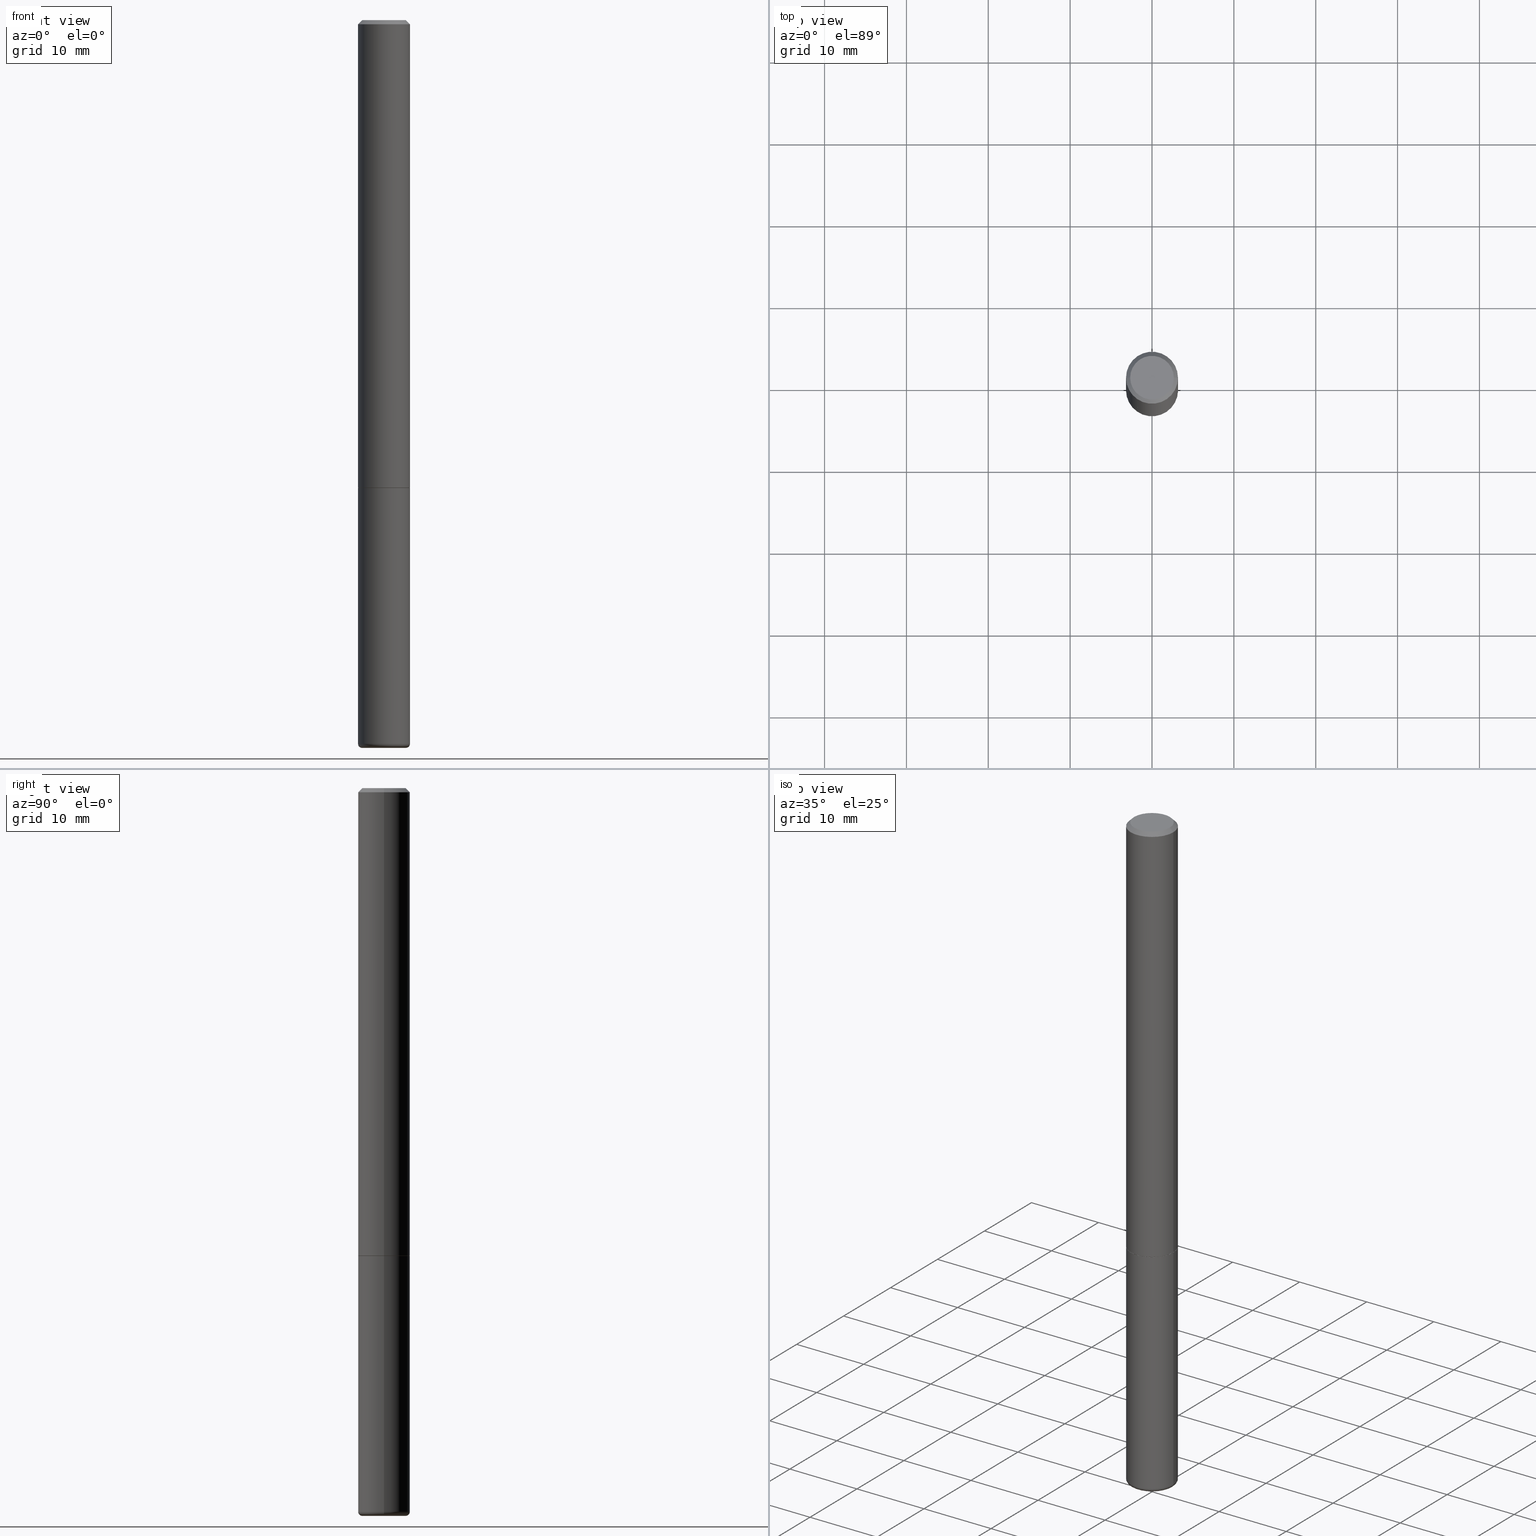
[diagram: canonical four-view strip — front | top / right | iso, engineering-drawing reading convention]
A machine part, canonical four-view strip (front | top / right | iso — engineering-drawing reading convention). The complete STEP part file that produces these views, byte-faithful:
ISO-10303-21;
HEADER;
FILE_DESCRIPTION (( 'STEP AP203' ),
    '1' );
FILE_NAME ('33394.STEP',
    '2022-11-02T20:10:54',
    ( '' ),
    ( '' ),
    'SwSTEP 2.0',
    'SolidWorks 2022',
    '' );
FILE_SCHEMA (( 'CONFIG_CONTROL_DESIGN' ));
ENDSEC;

DATA;
#1 = DATE_AND_TIME ( #155, #62 ) ;
#2 = EDGE_CURVE ( 'NONE', #392, #10, #116, .T. ) ;
#3 = APPROVAL_ROLE ( '' ) ;
#4 = APPROVAL_STATUS ( 'not_yet_approved' ) ;
#5 = CIRCLE ( 'NONE', #133, 0.1249999999999993200 ) ;
#6 = CARTESIAN_POINT ( 'NONE',  ( 0.1250000000000000000, -8.725211865769015625E-15, -2.248999999999999222 ) ) ;
#7 = EDGE_CURVE ( 'NONE', #58, #10, #346, .T. ) ;
#8 = FACE_OUTER_BOUND ( 'NONE', #364, .T. ) ;
#9 = DIRECTION ( 'NONE',  ( 2.438088387897960049E-29, -3.491481338843145188E-15, -1.000000000000000000 ) ) ;
#10 = VERTEX_POINT ( 'NONE', #35 ) ;
#11 = DIRECTION ( 'NONE',  ( -1.000000000000000000, 6.982962677686265922E-15, -4.876176775795935793E-29 ) ) ;
#12 = CIRCLE ( 'NONE', #69, 0.1239999999999999991 ) ;
#13 = ORIENTED_EDGE ( 'NONE', *, *, #236, .F. ) ;
#14 = LINE ( 'NONE', #315, #21 ) ;
#15 = ORIENTED_EDGE ( 'NONE', *, *, #115, .T. ) ;
#16 = COORDINATED_UNIVERSAL_TIME_OFFSET ( 5, 0, .BEHIND. ) ;
#17 = CARTESIAN_POINT ( 'NONE',  ( -0.1250000000000000000, 8.881784197001252323E-16, -6.148668862818632227E-30 ) ) ;
#18 = EDGE_LOOP ( 'NONE', ( #470, #96 ) ) ;
#19 = DIRECTION ( 'NONE',  ( 2.445468806185136597E-29, -3.491481338843145583E-15, -1.000000000000000000 ) ) ;
#20 = APPLICATION_CONTEXT ( 'configuration controlled 3d designs of mechanical parts and assemblies' ) ;
#21 = VECTOR ( 'NONE', #170, 39.37007874015748143 ) ;
#22 = ORIENTED_EDGE ( 'NONE', *, *, #288, .T. ) ;
#23 = ADVANCED_FACE ( 'NONE', ( #47 ), #388, .F. ) ;
#24 = LINE ( 'NONE', #324, #118 ) ;
#25 = VERTEX_POINT ( 'NONE', #6 ) ;
#26 = DIRECTION ( 'NONE',  ( -2.445468806185136597E-29, 3.491481338843145583E-15, 1.000000000000000000 ) ) ;
#27 = ORIENTED_EDGE ( 'NONE', *, *, #468, .F. ) ;
#28 = CARTESIAN_POINT ( 'NONE',  ( -0.1239999999999999991, -6.969461565706329456E-15, -2.249999999999999556 ) ) ;
#29 = ADVANCED_FACE ( 'NONE', ( #187 ), #347, .T. ) ;
#30 = EDGE_LOOP ( 'NONE', ( #247, #283, #216, #256 ) ) ;
#31 = AXIS2_PLACEMENT_3D ( 'NONE', #258, #411, #488 ) ;
#32 = CARTESIAN_POINT ( 'NONE',  ( 0.1239999999999999991, -8.721720384430172617E-15, -2.249999999999999556 ) ) ;
#33 = CARTESIAN_POINT ( 'NONE',  ( 5.499859345110370619E-29, -7.852341531058232286E-15, -2.248999999999999222 ) ) ;
#34 = COORDINATED_UNIVERSAL_TIME_OFFSET ( 5, 0, .BEHIND. ) ;
#35 = CARTESIAN_POINT ( 'NONE',  ( -0.1048254692900327661, -1.136876711352824121E-14, -3.500000000000000000 ) ) ;
#36 = DATE_AND_TIME ( #148, #305 ) ;
#37 = CIRCLE ( 'NONE', #263, 0.1250000000000000000 ) ;
#38 = EDGE_CURVE ( 'NONE', #179, #476, #214, .T. ) ;
#39 = APPROVAL_STATUS ( 'not_yet_approved' ) ;
#40 = CIRCLE ( 'NONE', #225, 0.1250000000000000000 ) ;
#41 = ORIENTED_EDGE ( 'NONE', *, *, #162, .T. ) ;
#42 = PERSON_AND_ORGANIZATION ( #234, #321 ) ;
#43 = DIRECTION ( 'NONE',  ( -2.445468806185136597E-29, 3.491481338843145583E-15, 1.000000000000000000 ) ) ;
#44 = MANIFOLD_SOLID_BREP ( 'Body-Move/Copy2[1]', #75 ) ;
#45 = CC_DESIGN_PERSON_AND_ORGANIZATION_ASSIGNMENT ( #78, #232, ( #272 ) ) ;
#46 = VERTEX_POINT ( 'NONE', #182 ) ;
#47 = FACE_OUTER_BOUND ( 'NONE', #466, .T. ) ;
#48 =( GEOMETRIC_REPRESENTATION_CONTEXT ( 3 ) GLOBAL_UNCERTAINTY_ASSIGNED_CONTEXT ( ( #129 ) ) GLOBAL_UNIT_ASSIGNED_CONTEXT ( ( #273, #422, #456 ) ) REPRESENTATION_CONTEXT ( 'NONE', 'WORKASPACE' ) );
#49 = DIRECTION ( 'NONE',  ( 0.7071067811865232589, -2.468850131082003836E-15, 0.7071067811865715536 ) ) ;
#50 = DIRECTION ( 'NONE',  ( -2.445468806185136597E-29, 3.491481338843145583E-15, 1.000000000000000000 ) ) ;
#51 = DIRECTION ( 'NONE',  ( 1.000000000000000000, -6.982962677686270655E-15, 0.000000000000000000 ) ) ;
#52 = VECTOR ( 'NONE', #262, 39.37007874015748143 ) ;
#53 = EDGE_LOOP ( 'NONE', ( #441, #55, #200, #481 ) ) ;
#54 = DIRECTION ( 'NONE',  ( 1.000000000000000000, -6.982962677686265922E-15, 0.000000000000000000 ) ) ;
#55 = ORIENTED_EDGE ( 'NONE', *, *, #281, .T. ) ;
#56 = CARTESIAN_POINT ( 'NONE',  ( -0.1250000000000000000, -3.072907159217412699E-15, -2.248999999999999222 ) ) ;
#57 = EDGE_CURVE ( 'NONE', #10, #46, #80, .T. ) ;
#58 = VERTEX_POINT ( 'NONE', #266 ) ;
#59 = DIRECTION ( 'NONE',  ( 1.000000000000000000, -6.982962677686265922E-15, 0.000000000000000000 ) ) ;
#60 = AXIS2_PLACEMENT_3D ( 'NONE', #33, #184, #372 ) ;
#61 = ORIENTED_EDGE ( 'NONE', *, *, #383, .T. ) ;
#62 = LOCAL_TIME ( 16, 10, 54.00000000000000000, #186 ) ;
#63 = DIRECTION ( 'NONE',  ( -2.445468806185136597E-29, 3.491481338843145583E-15, 1.000000000000000000 ) ) ;
#64 = VERTEX_POINT ( 'NONE', #417 ) ;
#65 = CARTESIAN_POINT ( 'NONE',  ( 0.1050000000000001488, -1.288356879922942237E-14, -3.480000761538716514 ) ) ;
#66 = ORIENTED_EDGE ( 'NONE', *, *, #482, .T. ) ;
#67 = LINE ( 'NONE', #413, #204 ) ;
#68 = DIRECTION ( 'NONE',  ( 1.000000000000000000, -6.982962677686270655E-15, 0.000000000000000000 ) ) ;
#69 = AXIS2_PLACEMENT_3D ( 'NONE', #122, #239, #199 ) ;
#70 = AXIS2_PLACEMENT_3D ( 'NONE', #213, #63, #322 ) ;
#71 = DIRECTION ( 'NONE',  ( -1.000000000000000000, 6.982962677686265922E-15, 0.000000000000000000 ) ) ;
#72 = ORIENTED_EDGE ( 'NONE', *, *, #361, .T. ) ;
#73 = CARTESIAN_POINT ( 'NONE',  ( 0.000000000000000000, 0.000000000000000000, 0.000000000000000000 ) ) ;
#74 = CC_DESIGN_PERSON_AND_ORGANIZATION_ASSIGNMENT ( #271, #303, ( #109 ) ) ;
#75 = CLOSED_SHELL ( 'NONE', ( #426, #76, #327, #274, #23, #147, #185, #29, #223 ) ) ;
#76 = ADVANCED_FACE ( 'NONE', ( #333 ), #278, .T. ) ;
#77 = CARTESIAN_POINT ( 'NONE',  ( 0.09149296929003276901, -1.284746578135302470E-14, -3.499883649035179456 ) ) ;
#78 = PERSON_AND_ORGANIZATION ( #234, #321 ) ;
#79 = DIRECTION ( 'NONE',  ( 1.000000000000000000, -6.982962677686265922E-15, 4.876176775795935793E-29 ) ) ;
#80 = CIRCLE ( 'NONE', #397, 0.01999999999999985470 ) ;
#81 = CIRCLE ( 'NONE', #189, 0.01999999999999985470 ) ;
#82 = DIRECTION ( 'NONE',  ( 1.000000000000000000, -6.982962677686270655E-15, 0.000000000000000000 ) ) ;
#83 = DESIGN_CONTEXT ( 'detailed design', #380, 'design' ) ;
#84 = DIRECTION ( 'NONE',  ( -1.000000000000000000, 6.982962677686270655E-15, 0.000000000000000000 ) ) ;
#85 = ORIENTED_EDGE ( 'NONE', *, *, #400, .T. ) ;
#86 = CC_DESIGN_PERSON_AND_ORGANIZATION_ASSIGNMENT ( #458, #379, ( #448 ) ) ;
#87 = DIRECTION ( 'NONE',  ( 2.445468806185136597E-29, -3.491481338843145583E-15, -1.000000000000000000 ) ) ;
#88 = ORIENTED_EDGE ( 'NONE', *, *, #7, .F. ) ;
#89 = DIRECTION ( 'NONE',  ( 1.000000000000000000, -6.982962677686262766E-15, 0.000000000000000000 ) ) ;
#90 = LOCAL_TIME ( 16, 10, 54.00000000000000000, #418 ) ;
#91 = EDGE_LOOP ( 'NONE', ( #436, #337, #102, #277 ) ) ;
#92 = CARTESIAN_POINT ( 'NONE',  ( 8.559140821647976968E-29, -1.222018468595100934E-14, -3.500000000000000000 ) ) ;
#93 = APPROVAL ( #117, 'UNSPECIFIED' ) ;
#94 = EDGE_LOOP ( 'NONE', ( #345, #72, #219, #329 ) ) ;
#95 = DIRECTION ( 'NONE',  ( -2.445468806185136877E-29, 3.491481338843145188E-15, 1.000000000000000000 ) ) ;
#96 = ORIENTED_EDGE ( 'NONE', *, *, #236, .T. ) ;
#97 = DIRECTION ( 'NONE',  ( -2.445468806185136597E-29, 3.491481338843145583E-15, 1.000000000000000000 ) ) ;
#98 = AXIS2_PLACEMENT_3D ( 'NONE', #310, #127, #469 ) ;
#99 = ORIENTED_EDGE ( 'NONE', *, *, #461, .T. ) ;
#100 = APPROVAL_PERSON_ORGANIZATION ( #229, #393, #314 ) ;
#101 = DIRECTION ( 'NONE',  ( -2.445468806185136597E-29, 3.491481338843145583E-15, 1.000000000000000000 ) ) ;
#102 = ORIENTED_EDGE ( 'NONE', *, *, #440, .F. ) ;
#103 = DIRECTION ( 'NONE',  ( 2.445468806185136597E-29, -3.491481338843145583E-15, -1.000000000000000000 ) ) ;
#104 = DIRECTION ( 'NONE',  ( -2.445468806185136597E-29, 3.491481338843145583E-15, 1.000000000000000000 ) ) ;
#105 = FACE_OUTER_BOUND ( 'NONE', #291, .T. ) ;
#106 = DIRECTION ( 'NONE',  ( 2.445468806185136597E-29, -3.491481338843145583E-15, -1.000000000000000000 ) ) ;
#107 = AXIS2_PLACEMENT_3D ( 'NONE', #276, #395, #51 ) ;
#108 = CONICAL_SURFACE ( 'NONE', #98, 0.09149296929003276901, 1.535889741755006810 ) ;
#109 = SECURITY_CLASSIFICATION ( '', '', #267 ) ;
#110 = APPLICATION_PROTOCOL_DEFINITION ( 'international standard', 'config_control_design', 1994, #20 ) ;
#111 = EDGE_CURVE ( 'NONE', #25, #191, #235, .T. ) ;
#112 = CARTESIAN_POINT ( 'NONE',  ( -0.1050000000000001488, -1.140428784552425740E-14, -3.480000761538716514 ) ) ;
#113 =( LENGTH_UNIT ( ) NAMED_UNIT ( * ) SI_UNIT ( $, .METRE. ) );
#114 = APPROVAL_ROLE ( '' ) ;
#115 = EDGE_CURVE ( 'NONE', #210, #25, #457, .T. ) ;
#116 = CIRCLE ( 'NONE', #356, 0.1048254692900327661 ) ;
#117 = APPROVAL_STATUS ( 'not_yet_approved' ) ;
#118 = VECTOR ( 'NONE', #180, 39.37007874015748143 ) ;
#119 = CALENDAR_DATE ( 2022, 2, 11 ) ;
#120 = DIRECTION ( 'NONE',  ( -2.445468806185136877E-29, 3.491481338843145188E-15, 1.000000000000000000 ) ) ;
#121 = EDGE_LOOP ( 'NONE', ( #135, #252, #99, #403 ) ) ;
#122 = CARTESIAN_POINT ( 'NONE',  ( 5.502304813916556222E-29, -7.855833012397075293E-15, -2.249999999999999556 ) ) ;
#123 = ORIENTED_EDGE ( 'NONE', *, *, #302, .F. ) ;
#124 = CONICAL_SURFACE ( 'NONE', #254, 0.1249999999999993200, 0.7853981633974472798 ) ;
#125 = AXIS2_PLACEMENT_3D ( 'NONE', #253, #138, #437 ) ;
#126 = CARTESIAN_POINT ( 'NONE',  ( 8.551043004197141345E-29, -1.220862314877521554E-14, -3.496688644144486435 ) ) ;
#127 = DIRECTION ( 'NONE',  ( 2.445468806185136597E-29, -3.491481338843145583E-15, -1.000000000000000000 ) ) ;
#128 = PLANE ( 'NONE',  #237 ) ;
#129 = UNCERTAINTY_MEASURE_WITH_UNIT (LENGTH_MEASURE( 1.000000000000000082E-05 ), #273, 'distance_accuracy_value', 'NONE');
#130 = VERTEX_POINT ( 'NONE', #77 ) ;
#131 = ADVANCED_FACE ( 'NONE', ( #8 ), #445, .F. ) ;
#132 = DIRECTION ( 'NONE',  ( -2.445468806185136597E-29, 3.491481338843145583E-15, 1.000000000000000000 ) ) ;
#133 = AXIS2_PLACEMENT_3D ( 'NONE', #353, #241, #54 ) ;
#134 = CIRCLE ( 'NONE', #483, 0.1249999999999993200 ) ;
#135 = ORIENTED_EDGE ( 'NONE', *, *, #478, .F. ) ;
#136 = LINE ( 'NONE', #366, #215 ) ;
#137 = EDGE_LOOP ( 'NONE', ( #323, #317, #27 ) ) ;
#138 = DIRECTION ( 'NONE',  ( -2.445468806185136597E-29, 3.491481338843145583E-15, 1.000000000000000000 ) ) ;
#139 = ORIENTED_EDGE ( 'NONE', *, *, #361, .F. ) ;
#140 = LINE ( 'NONE', #298, #265 ) ;
#141 = ORIENTED_EDGE ( 'NONE', *, *, #111, .T. ) ;
#142 = VECTOR ( 'NONE', #172, 39.37007874015748854 ) ;
#143 = CARTESIAN_POINT ( 'NONE',  ( 5.502304813916556222E-29, -7.855833012397075293E-15, -2.249999999999999556 ) ) ;
#144 = CARTESIAN_POINT ( 'NONE',  ( 8.559140821647976968E-29, -1.222018468595100934E-14, -3.500000000000000000 ) ) ;
#145 = DIRECTION ( 'NONE',  ( 2.445468806185136597E-29, -3.491481338843145583E-15, -1.000000000000000000 ) ) ;
#146 = CARTESIAN_POINT ( 'NONE',  ( -0.1250000000000000000, -9.114916945534594439E-15, -2.249999999999999556 ) ) ;
#147 = ADVANCED_FACE ( 'NONE', ( #297 ), #485, .F. ) ;
#148 = CALENDAR_DATE ( 2022, 2, 11 ) ;
#149 = DIRECTION ( 'NONE',  ( -1.000000000000000000, 6.982962677686276177E-15, 0.000000000000000000 ) ) ;
#150 = VECTOR ( 'NONE', #279, 39.37007874015748854 ) ;
#151 = AXIS2_PLACEMENT_3D ( 'NONE', #404, #103, #71 ) ;
#152 = DIRECTION ( 'NONE',  ( 1.000000000000000000, 0.000000000000000000, 0.000000000000000000 ) ) ;
#153 = PERSON_AND_ORGANIZATION_ROLE ( 'design_supplier' ) ;
#154 = ADVANCED_FACE ( 'NONE', ( #160 ), #349, .T. ) ;
#155 = CALENDAR_DATE ( 2022, 2, 11 ) ;
#156 = AXIS2_PLACEMENT_3D ( 'NONE', #453, #43, #375 ) ;
#157 = DATE_AND_TIME ( #119, #90 ) ;
#158 = AXIS2_PLACEMENT_3D ( 'NONE', #218, #26, #177 ) ;
#159 = ORIENTED_EDGE ( 'NONE', *, *, #259, .T. ) ;
#160 = FACE_OUTER_BOUND ( 'NONE', #377, .T. ) ;
#161 = VERTEX_POINT ( 'NONE', #146 ) ;
#162 = EDGE_CURVE ( 'NONE', #355, #25, #299, .T. ) ;
#163 = LINE ( 'NONE', #464, #150 ) ;
#164 = VECTOR ( 'NONE', #120, 39.37007874015748143 ) ;
#165 = APPROVAL_PERSON_ORGANIZATION ( #190, #93, #114 ) ;
#166 = CARTESIAN_POINT ( 'NONE',  ( 0.000000000000000000, 0.000000000000000000, 0.000000000000000000 ) ) ;
#167 = CARTESIAN_POINT ( 'NONE',  ( 5.502304813916556222E-29, -7.855833012397075293E-15, -2.249999999999999556 ) ) ;
#168 = EDGE_CURVE ( 'NONE', #355, #409, #12, .T. ) ;
#169 = ORIENTED_EDGE ( 'NONE', *, *, #115, .F. ) ;
#170 = DIRECTION ( 'NONE',  ( -2.445468806185136877E-29, 3.491481338843145188E-15, 1.000000000000000000 ) ) ;
#171 = ORIENTED_EDGE ( 'NONE', *, *, #400, .F. ) ;
#172 = DIRECTION ( 'NONE',  ( 0.9999619230641714207, -6.890705306874825328E-15, -0.008726535498369011531 ) ) ;
#173 = CC_DESIGN_APPROVAL ( #393, ( #109 ) ) ;
#174 = ORIENTED_EDGE ( 'NONE', *, *, #461, .F. ) ;
#175 = LINE ( 'NONE', #326, #52 ) ;
#176 = ORIENTED_EDGE ( 'NONE', *, *, #306, .T. ) ;
#177 = DIRECTION ( 'NONE',  ( 1.000000000000000000, -6.982962677686276177E-15, 0.000000000000000000 ) ) ;
#178 = CC_DESIGN_DATE_AND_TIME_ASSIGNMENT ( #157, #307, ( #109 ) ) ;
#179 = VERTEX_POINT ( 'NONE', #472 ) ;
#180 = DIRECTION ( 'NONE',  ( -0.7071067811865467956, 2.468850131082249172E-15, -0.7071067811865482389 ) ) ;
#181 = AXIS2_PLACEMENT_3D ( 'NONE', #490, #104, #275 ) ;
#182 = CARTESIAN_POINT ( 'NONE',  ( -0.1250000000000000000, -9.114916945534594439E-15, -3.480000761538716514 ) ) ;
#183 = DIRECTION ( 'NONE',  ( 1.000000000000000000, -6.982962677686276177E-15, 0.000000000000000000 ) ) ;
#184 = DIRECTION ( 'NONE',  ( -2.445468806185136597E-29, 3.491481338843145583E-15, 1.000000000000000000 ) ) ;
#185 = ADVANCED_FACE ( 'NONE', ( #429 ), #428, .T. ) ;
#186 = COORDINATED_UNIVERSAL_TIME_OFFSET ( 5, 0, .BEHIND. ) ;
#187 = FACE_OUTER_BOUND ( 'NONE', #479, .T. ) ;
#188 = COORDINATED_UNIVERSAL_TIME_OFFSET ( 5, 0, .BEHIND. ) ;
#189 = AXIS2_PLACEMENT_3D ( 'NONE', #65, #220, #373 ) ;
#190 = PERSON_AND_ORGANIZATION ( #234, #321 ) ;
#191 = VERTEX_POINT ( 'NONE', #205 ) ;
#192 = APPROVAL_DATE_TIME ( #301, #93 ) ;
#193 = CARTESIAN_POINT ( 'NONE',  ( 5.502304813916556222E-29, -7.855833012397075293E-15, -2.249999999999999556 ) ) ;
#194 = AXIS2_PLACEMENT_3D ( 'NONE', #227, #106, #149 ) ;
#195 = CC_DESIGN_APPROVAL ( #320, ( #452 ) ) ;
#196 = DIRECTION ( 'NONE',  ( -2.445468806185136597E-29, 3.491481338843145583E-15, 1.000000000000000000 ) ) ;
#197 = ORIENTED_EDGE ( 'NONE', *, *, #454, .F. ) ;
#198 = ADVANCED_FACE ( 'NONE', ( #435 ), #284, .T. ) ;
#199 = DIRECTION ( 'NONE',  ( 1.000000000000000000, -6.982962677686262766E-15, 0.000000000000000000 ) ) ;
#200 = ORIENTED_EDGE ( 'NONE', *, *, #430, .F. ) ;
#201 = FACE_OUTER_BOUND ( 'NONE', #53, .T. ) ;
#202 = CALENDAR_DATE ( 2022, 2, 11 ) ;
#203 = VECTOR ( 'NONE', #300, 39.37007874015748854 ) ;
#204 = VECTOR ( 'NONE', #95, 39.37007874015748143 ) ;
#205 = CARTESIAN_POINT ( 'NONE',  ( 0.1249999999999993200, -9.273918764983000103E-16, -0.02000000000000008715 ) ) ;
#206 = EDGE_CURVE ( 'NONE', #249, #191, #5, .T. ) ;
#207 = DIMENSIONAL_EXPONENTS ( 1.000000000000000000, 0.000000000000000000, 0.000000000000000000, 0.000000000000000000, 0.000000000000000000, 0.000000000000000000, 0.000000000000000000 ) ;
#208 = ORIENTED_EDGE ( 'NONE', *, *, #259, .F. ) ;
#209 = DIRECTION ( 'NONE',  ( 1.000000000000000000, -6.982962677686266711E-15, 4.876176775795935793E-29 ) ) ;
#210 = VERTEX_POINT ( 'NONE', #56 ) ;
#211 = DIRECTION ( 'NONE',  ( 1.000000000000000000, -6.982962677686267499E-15, 4.876206205277427099E-29 ) ) ;
#212 = ORIENTED_EDGE ( 'NONE', *, *, #240, .T. ) ;
#213 = CARTESIAN_POINT ( 'NONE',  ( 5.502304813916556222E-29, -7.855833012397075293E-15, -2.249999999999999556 ) ) ;
#214 = CIRCLE ( 'NONE', #156, 0.1049999999999992883 ) ;
#215 = VECTOR ( 'NONE', #226, 39.37007874015748143 ) ;
#216 = ORIENTED_EDGE ( 'NONE', *, *, #482, .F. ) ;
#217 = PRODUCT_RELATED_PRODUCT_CATEGORY ( 'detail', '', ( #272 ) ) ;
#218 = CARTESIAN_POINT ( 'NONE',  ( 8.558856288992939589E-29, -1.221977844872858284E-14, -3.499883649035179456 ) ) ;
#219 = ORIENTED_EDGE ( 'NONE', *, *, #7, .T. ) ;
#220 = DIRECTION ( 'NONE',  ( -6.982962677686266711E-15, -1.000000000000000000, 3.491481338843145583E-15 ) ) ;
#221 = CARTESIAN_POINT ( 'NONE',  ( 0.1249999999999996531, -8.728703347107809722E-16, 6.095220969744903626E-30 ) ) ;
#222 = DIRECTION ( 'NONE',  ( 1.000000000000000000, -6.982962677686262766E-15, 0.000000000000000000 ) ) ;
#223 = ADVANCED_FACE ( 'NONE', ( #285 ), #451, .F. ) ;
#224 = CARTESIAN_POINT ( 'NONE',  ( 8.510233307843451119E-29, -1.215035771807236405E-14, -3.480000761538716514 ) ) ;
#225 = AXIS2_PLACEMENT_3D ( 'NONE', #475, #101, #222 ) ;
#226 = DIRECTION ( 'NONE',  ( 0.9993908270190955401, -6.978169709227551743E-15, -0.03489949670250418884 ) ) ;
#227 = CARTESIAN_POINT ( 'NONE',  ( 8.558856288992939589E-29, -1.221977844872858284E-14, -3.499883649035179456 ) ) ;
#228 = DIRECTION ( 'NONE',  ( 0.000000000000000000, 0.000000000000000000, 1.000000000000000000 ) ) ;
#229 = PERSON_AND_ORGANIZATION ( #234, #321 ) ;
#230 = AXIS2_PLACEMENT_3D ( 'NONE', #224, #196, #459 ) ;
#231 = CIRCLE ( 'NONE', #332, 0.1250000000000000000 ) ;
#232 = PERSON_AND_ORGANIZATION_ROLE ( 'design_owner' ) ;
#233 = MECHANICAL_CONTEXT ( 'NONE', #20, 'mechanical' ) ;
#234 = PERSON ( 'UNSPECIFIED', 'UNSPECIFIED', 'UNSPECIFIED', ('UNSPECIFIED'), ('UNSPECIFIED'), ('UNSPECIFIED') ) ;
#235 = LINE ( 'NONE', #221, #164 ) ;
#236 = EDGE_CURVE ( 'NONE', #476, #179, #474, .T. ) ;
#237 = AXIS2_PLACEMENT_3D ( 'NONE', #431, #9, #11 ) ;
#238 = CARTESIAN_POINT ( 'NONE',  ( -0.1249999999999993200, 8.030407079339153075E-16, -0.02000000000000008715 ) ) ;
#239 = DIRECTION ( 'NONE',  ( -2.445468806185136597E-29, 3.491481338843145583E-15, 1.000000000000000000 ) ) ;
#240 = EDGE_CURVE ( 'NONE', #210, #249, #14, .T. ) ;
#241 = DIRECTION ( 'NONE',  ( -2.445468806185136597E-29, 3.491481338843145583E-15, 1.000000000000000000 ) ) ;
#242 = ORIENTED_EDGE ( 'NONE', *, *, #352, .T. ) ;
#243 = SHAPE_DEFINITION_REPRESENTATION ( #419, #328 ) ;
#244 = AXIS2_PLACEMENT_3D ( 'NONE', #261, #335, #387 ) ;
#245 = AXIS2_PLACEMENT_3D ( 'NONE', #166, #399, #209 ) ;
#246 = CYLINDRICAL_SURFACE ( 'NONE', #245, 0.1250000000000000000 ) ;
#247 = ORIENTED_EDGE ( 'NONE', *, *, #168, .T. ) ;
#248 = FACE_OUTER_BOUND ( 'NONE', #401, .T. ) ;
#249 = VERTEX_POINT ( 'NONE', #238 ) ;
#250 = DIRECTION ( 'NONE',  ( -1.000000000000000000, 6.982962677686270655E-15, 0.000000000000000000 ) ) ;
#251 = ADVANCED_FACE ( 'NONE', ( #248 ), #124, .T. ) ;
#252 = ORIENTED_EDGE ( 'NONE', *, *, #38, .F. ) ;
#253 = CARTESIAN_POINT ( 'NONE',  ( 0.000000000000000000, 0.000000000000000000, 0.000000000000000000 ) ) ;
#254 = AXIS2_PLACEMENT_3D ( 'NONE', #318, #19, #391 ) ;
#255 = CIRCLE ( 'NONE', #70, 0.1250000000000000000 ) ;
#256 = ORIENTED_EDGE ( 'NONE', *, *, #162, .F. ) ;
#257 = CYLINDRICAL_SURFACE ( 'NONE', #125, 0.1249999999999996531 ) ;
#258 = CARTESIAN_POINT ( 'NONE',  ( 0.000000000000000000, 0.000000000000000000, 0.000000000000000000 ) ) ;
#259 = EDGE_CURVE ( 'NONE', #161, #64, #37, .T. ) ;
#260 = FACE_OUTER_BOUND ( 'NONE', #121, .T. ) ;
#261 = CARTESIAN_POINT ( 'NONE',  ( 8.728703347108382633E-16, 0.1249999999999921452, -2.250000000000000000 ) ) ;
#262 = DIRECTION ( 'NONE',  ( -0.9993908270190955401, 6.856857904024544637E-15, -0.03489949670250418884 ) ) ;
#263 = AXIS2_PLACEMENT_3D ( 'NONE', #167, #467, #82 ) ;
#264 = CARTESIAN_POINT ( 'NONE',  ( -0.1048254692900327661, -1.148819234622776082E-14, -3.500000000000000000 ) ) ;
#265 = VECTOR ( 'NONE', #287, 39.37007874015748143 ) ;
#266 = CARTESIAN_POINT ( 'NONE',  ( -0.09149296929003276901, -1.158088645890558740E-14, -3.499883649035179456 ) ) ;
#267 = SECURITY_CLASSIFICATION_LEVEL ( 'unclassified' ) ;
#268 = CC_DESIGN_PERSON_AND_ORGANIZATION_ASSIGNMENT ( #42, #491, ( #452 ) ) ;
#269 = PERSON_AND_ORGANIZATION ( #234, #321 ) ;
#270 = CC_DESIGN_APPROVAL ( #93, ( #448 ) ) ;
#271 = PERSON_AND_ORGANIZATION ( #234, #321 ) ;
#272 = PRODUCT ( '33394', '33394', '', ( #233 ) ) ;
#273 =( CONVERSION_BASED_UNIT ( 'INCH', #342 ) LENGTH_UNIT ( ) NAMED_UNIT ( #207 ) );
#274 = ADVANCED_FACE ( 'NONE', ( #350 ), #108, .F. ) ;
#275 = DIRECTION ( 'NONE',  ( 1.000000000000000000, -6.982962677686262766E-15, 4.883557194083111780E-29 ) ) ;
#276 = CARTESIAN_POINT ( 'NONE',  ( 8.559140821647976968E-29, -1.222018468595100934E-14, -3.500000000000000000 ) ) ;
#277 = ORIENTED_EDGE ( 'NONE', *, *, #352, .F. ) ;
#278 = TOROIDAL_SURFACE ( 'NONE', #230, 0.1050000000000001488, 0.01999999999999986511 ) ;
#279 = DIRECTION ( 'NONE',  ( -0.7071067811865232589, 7.493145998870265808E-15, 0.7071067811865715536 ) ) ;
#280 = DIRECTION ( 'NONE',  ( 1.000000000000000000, -6.982962677686262766E-15, 0.000000000000000000 ) ) ;
#281 = EDGE_CURVE ( 'NONE', #46, #161, #462, .T. ) ;
#282 = CARTESIAN_POINT ( 'NONE',  ( 5.502304813916556222E-29, -7.855833012397075293E-15, -2.249999999999999556 ) ) ;
#283 = ORIENTED_EDGE ( 'NONE', *, *, #302, .T. ) ;
#284 = CONICAL_SURFACE ( 'NONE', #340, 0.1239999999999999991, 0.7853981633974141952 ) ;
#285 = FACE_OUTER_BOUND ( 'NONE', #94, .T. ) ;
#286 = ORIENTED_EDGE ( 'NONE', *, *, #344, .T. ) ;
#287 = DIRECTION ( 'NONE',  ( 0.7071067811865467956, -7.319954787623254468E-15, -0.7071067811865482389 ) ) ;
#288 = EDGE_CURVE ( 'NONE', #10, #392, #389, .T. ) ;
#289 = ORIENTED_EDGE ( 'NONE', *, *, #111, .F. ) ;
#290 = LINE ( 'NONE', #334, #142 ) ;
#291 = EDGE_LOOP ( 'NONE', ( #311, #15, #141, #319 ) ) ;
#292 = CARTESIAN_POINT ( 'NONE',  ( 4.890937612370294178E-31, -6.982962677686321191E-17, -0.02000000000000008715 ) ) ;
#293 = VECTOR ( 'NONE', #316, 39.37007874015748143 ) ;
#294 = VERTEX_POINT ( 'NONE', #126 ) ;
#295 = ADVANCED_FACE ( 'NONE', ( #424 ), #128, .F. ) ;
#296 = DIRECTION ( 'NONE',  ( -2.445468806185136597E-29, 3.491481338843145583E-15, 1.000000000000000000 ) ) ;
#297 = FACE_OUTER_BOUND ( 'NONE', #396, .T. ) ;
#298 = CARTESIAN_POINT ( 'NONE',  ( 0.1249999999999993200, -9.273918764983000103E-16, -0.02000000000000008715 ) ) ;
#299 = LINE ( 'NONE', #450, #304 ) ;
#300 = DIRECTION ( 'NONE',  ( -0.9999619230641714207, 6.952228252019186602E-15, -0.008726535498369011531 ) ) ;
#301 = DATE_AND_TIME ( #489, #421 ) ;
#302 = EDGE_CURVE ( 'NONE', #409, #210, #163, .T. ) ;
#303 = PERSON_AND_ORGANIZATION_ROLE ( 'classification_officer' ) ;
#304 = VECTOR ( 'NONE', #49, 39.37007874015748854 ) ;
#305 = LOCAL_TIME ( 16, 10, 54.00000000000000000, #188 ) ;
#306 = EDGE_CURVE ( 'NONE', #409, #355, #381, .T. ) ;
#307 = DATE_TIME_ROLE ( 'classification_date' ) ;
#308 = DIRECTION ( 'NONE',  ( 7.105427357601001859E-15, 1.000000000000000000, -3.491481338843145583E-15 ) ) ;
#309 = ORIENTED_EDGE ( 'NONE', *, *, #420, .T. ) ;
#310 = CARTESIAN_POINT ( 'NONE',  ( 8.558856288992939589E-29, -1.221977844872858284E-14, -3.499883649035179456 ) ) ;
#311 = ORIENTED_EDGE ( 'NONE', *, *, #240, .F. ) ;
#312 = DIRECTION ( 'NONE',  ( 1.000000000000000000, -6.982962677686266711E-15, 4.876176775795935793E-29 ) ) ;
#313 = APPROVAL_PERSON_ORGANIZATION ( #269, #320, #3 ) ;
#314 = APPROVAL_ROLE ( '' ) ;
#315 = CARTESIAN_POINT ( 'NONE',  ( -0.1249999999999996531, 8.881784197001227671E-16, -6.148668862818615412E-30 ) ) ;
#316 = DIRECTION ( 'NONE',  ( -2.445468806185136877E-29, 3.491481338843145188E-15, 1.000000000000000000 ) ) ;
#317 = ORIENTED_EDGE ( 'NONE', *, *, #454, .T. ) ;
#318 = CARTESIAN_POINT ( 'NONE',  ( 4.890937612370294178E-31, -6.982962677686321191E-17, -0.02000000000000008715 ) ) ;
#319 = ORIENTED_EDGE ( 'NONE', *, *, #206, .F. ) ;
#320 = APPROVAL ( #4, 'UNSPECIFIED' ) ;
#321 = ORGANIZATION ( 'UNSPECIFIED', 'UNSPECIFIED', '' ) ;
#322 = DIRECTION ( 'NONE',  ( 1.000000000000000000, -6.982962677686270655E-15, 0.000000000000000000 ) ) ;
#323 = ORIENTED_EDGE ( 'NONE', *, *, #420, .F. ) ;
#324 = CARTESIAN_POINT ( 'NONE',  ( -0.1249999999999993200, 8.030407079339153075E-16, -0.02000000000000008715 ) ) ;
#325 = EDGE_LOOP ( 'NONE', ( #123, #176, #41, #169 ) ) ;
#326 = CARTESIAN_POINT ( 'NONE',  ( -0.09149296929003276901, -1.158088645890558740E-14, -3.499883649035179456 ) ) ;
#327 = ADVANCED_FACE ( 'NONE', ( #201 ), #246, .T. ) ;
#328 = ADVANCED_BREP_SHAPE_REPRESENTATION ( '33394', ( #44, #384, #341 ), #48 ) ;
#329 = ORIENTED_EDGE ( 'NONE', *, *, #2, .F. ) ;
#330 = DIRECTION ( 'NONE',  ( 1.000000000000000000, -6.982962677686262766E-15, 0.000000000000000000 ) ) ;
#331 = CLOSED_SHELL ( 'NONE', ( #486, #154, #251, #367, #378, #198, #131, #295 ) ) ;
#332 = AXIS2_PLACEMENT_3D ( 'NONE', #371, #408, #376 ) ;
#333 = FACE_OUTER_BOUND ( 'NONE', #91, .T. ) ;
#334 = CARTESIAN_POINT ( 'NONE',  ( 0.1048254692900327661, -1.293933960813073907E-14, -3.500000000000000000 ) ) ;
#335 = DIRECTION ( 'NONE',  ( 2.438088387897960049E-29, -3.491481338843145188E-15, -1.000000000000000000 ) ) ;
#336 = APPLICATION_PROTOCOL_DEFINITION ( 'international standard', 'config_control_design', 1994, #380 ) ;
#337 = ORIENTED_EDGE ( 'NONE', *, *, #57, .T. ) ;
#338 = CC_DESIGN_PERSON_AND_ORGANIZATION_ASSIGNMENT ( #455, #153, ( #452 ) ) ;
#339 = APPROVAL_DATE_TIME ( #1, #320 ) ;
#340 = AXIS2_PLACEMENT_3D ( 'NONE', #282, #132, #280 ) ;
#341 = AXIS2_PLACEMENT_3D ( 'NONE', #73, #228, #152 ) ;
#342 = LENGTH_MEASURE_WITH_UNIT ( LENGTH_MEASURE( 0.02539999999999999897 ), #113 );
#343 = DATE_TIME_ROLE ( 'creation_date' ) ;
#344 = EDGE_CURVE ( 'NONE', #130, #392, #290, .T. ) ;
#345 = ORIENTED_EDGE ( 'NONE', *, *, #344, .F. ) ;
#346 = LINE ( 'NONE', #264, #203 ) ;
#347 = TOROIDAL_SURFACE ( 'NONE', #181, 0.1050000000000001488, 0.01999999999999986511 ) ;
#348 = CONICAL_SURFACE ( 'NONE', #382, 0.1239999999999999991, 0.7853981633974141952 ) ;
#349 = CYLINDRICAL_SURFACE ( 'NONE', #31, 0.1249999999999996531 ) ;
#350 = FACE_OUTER_BOUND ( 'NONE', #137, .T. ) ;
#351 = ORIENTED_EDGE ( 'NONE', *, *, #168, .F. ) ;
#352 = EDGE_CURVE ( 'NONE', #392, #432, #81, .T. ) ;
#353 = CARTESIAN_POINT ( 'NONE',  ( 4.890937612370294178E-31, -6.982962677686321191E-17, -0.02000000000000008715 ) ) ;
#354 = EDGE_CURVE ( 'NONE', #432, #64, #67, .T. ) ;
#355 = VERTEX_POINT ( 'NONE', #32 ) ;
#356 = AXIS2_PLACEMENT_3D ( 'NONE', #144, #447, #68 ) ;
#357 = CONICAL_SURFACE ( 'NONE', #151, 0.1249999999999993200, 0.7853981633974472798 ) ;
#358 = DIRECTION ( 'NONE',  ( -2.445468806185136597E-29, 3.491481338843145583E-15, 1.000000000000000000 ) ) ;
#359 = ORIENTED_EDGE ( 'NONE', *, *, #383, .F. ) ;
#360 = DIRECTION ( 'NONE',  ( -2.445468806185136597E-29, 3.491481338843145583E-15, 1.000000000000000000 ) ) ;
#361 = EDGE_CURVE ( 'NONE', #130, #58, #434, .T. ) ;
#362 = ORIENTED_EDGE ( 'NONE', *, *, #478, .T. ) ;
#363 = CARTESIAN_POINT ( 'NONE',  ( 4.175405657340879278E-46, -5.961372681521788801E-32, -1.707404996040164512E-17 ) ) ;
#364 = EDGE_LOOP ( 'NONE', ( #351, #473 ) ) ;
#365 = AXIS2_PLACEMENT_3D ( 'NONE', #449, #439, #183 ) ;
#366 = CARTESIAN_POINT ( 'NONE',  ( 0.09149296929003276901, -1.284746578135302470E-14, -3.499883649035179456 ) ) ;
#367 = ADVANCED_FACE ( 'NONE', ( #260 ), #357, .T. ) ;
#368 = ORIENTED_EDGE ( 'NONE', *, *, #57, .F. ) ;
#369 = CARTESIAN_POINT ( 'NONE',  ( 8.559140821647976968E-29, -1.222018468595100934E-14, -3.500000000000000000 ) ) ;
#370 = ORIENTED_EDGE ( 'NONE', *, *, #468, .T. ) ;
#371 = CARTESIAN_POINT ( 'NONE',  ( 8.510233307843451119E-29, -1.215035771807236405E-14, -3.480000761538716514 ) ) ;
#372 = DIRECTION ( 'NONE',  ( 1.000000000000000000, -6.982962677686262766E-15, 0.000000000000000000 ) ) ;
#373 = DIRECTION ( 'NONE',  ( 1.000000000000000000, -6.982962677686287221E-15, 0.000000000000000000 ) ) ;
#374 = CONICAL_SURFACE ( 'NONE', #407, 0.1048254692900327661, 1.562069680534929894 ) ;
#375 = DIRECTION ( 'NONE',  ( 1.000000000000000000, -6.982962677686267499E-15, 4.876206205277427099E-29 ) ) ;
#376 = DIRECTION ( 'NONE',  ( 1.000000000000000000, -6.982962677686262766E-15, 0.000000000000000000 ) ) ;
#377 = EDGE_LOOP ( 'NONE', ( #66, #212, #359, #289 ) ) ;
#378 = ADVANCED_FACE ( 'NONE', ( #105 ), #257, .T. ) ;
#379 = PERSON_AND_ORGANIZATION_ROLE ( 'creator' ) ;
#380 = APPLICATION_CONTEXT ( 'configuration controlled 3d designs of mechanical parts and assemblies' ) ;
#381 = CIRCLE ( 'NONE', #425, 0.1239999999999999991 ) ;
#382 = AXIS2_PLACEMENT_3D ( 'NONE', #143, #296, #446 ) ;
#383 = EDGE_CURVE ( 'NONE', #191, #249, #134, .T. ) ;
#384 = MANIFOLD_SOLID_BREP ( 'Body-Move/Copy2[2]', #331 ) ;
#385 = ORIENTED_EDGE ( 'NONE', *, *, #288, .F. ) ;
#386 = APPROVAL_DATE_TIME ( #471, #393 ) ;
#387 = DIRECTION ( 'NONE',  ( -1.000000000000000000, 6.982962677686265922E-15, -4.876176775795935793E-29 ) ) ;
#388 = CONICAL_SURFACE ( 'NONE', #194, 0.09149296929003276901, 1.535889741755006810 ) ;
#389 = CIRCLE ( 'NONE', #107, 0.1048254692900327661 ) ;
#390 = LOCAL_TIME ( 16, 10, 54.00000000000000000, #16 ) ;
#391 = DIRECTION ( 'NONE',  ( -1.000000000000000000, 6.982962677686265922E-15, 0.000000000000000000 ) ) ;
#392 = VERTEX_POINT ( 'NONE', #477 ) ;
#393 = APPROVAL ( #39, 'UNSPECIFIED' ) ;
#394 = CARTESIAN_POINT ( 'NONE',  ( 5.502304813916556222E-29, -7.855833012397075293E-15, -2.249999999999999556 ) ) ;
#395 = DIRECTION ( 'NONE',  ( -2.445468806185136597E-29, 3.491481338843145583E-15, 1.000000000000000000 ) ) ;
#396 = EDGE_LOOP ( 'NONE', ( #438, #159 ) ) ;
#397 = AXIS2_PLACEMENT_3D ( 'NONE', #112, #308, #416 ) ;
#398 = CIRCLE ( 'NONE', #158, 0.09149296929003276901 ) ;
#399 = DIRECTION ( 'NONE',  ( -2.445468806185136597E-29, 3.491481338843145583E-15, 1.000000000000000000 ) ) ;
#400 = EDGE_CURVE ( 'NONE', #46, #432, #231, .T. ) ;
#401 = EDGE_LOOP ( 'NONE', ( #13, #362, #61, #174 ) ) ;
#402 = CARTESIAN_POINT ( 'NONE',  ( 0.000000000000000000, 0.000000000000000000, 0.000000000000000000 ) ) ;
#403 = ORIENTED_EDGE ( 'NONE', *, *, #206, .T. ) ;
#404 = CARTESIAN_POINT ( 'NONE',  ( 4.890937612370294178E-31, -6.982962677686321191E-17, -0.02000000000000008715 ) ) ;
#405 = EDGE_LOOP ( 'NONE', ( #460, #85, #463, #208 ) ) ;
#406 = AXIS2_PLACEMENT_3D ( 'NONE', #92, #87, #84 ) ;
#407 = AXIS2_PLACEMENT_3D ( 'NONE', #369, #145, #250 ) ;
#408 = DIRECTION ( 'NONE',  ( -2.445468806185136597E-29, 3.491481338843145583E-15, 1.000000000000000000 ) ) ;
#409 = VERTEX_POINT ( 'NONE', #28 ) ;
#410 = CARTESIAN_POINT ( 'NONE',  ( 5.499859345110370619E-29, -7.852341531058232286E-15, -2.248999999999999222 ) ) ;
#411 = DIRECTION ( 'NONE',  ( -2.445468806185136597E-29, 3.491481338843145583E-15, 1.000000000000000000 ) ) ;
#412 = CARTESIAN_POINT ( 'NONE',  ( 0.1250000000000000000, -1.302322805278314581E-14, -3.480000761538716514 ) ) ;
#413 = CARTESIAN_POINT ( 'NONE',  ( 0.1250000000000000000, -8.728703347107833388E-16, 6.095220969744919741E-30 ) ) ;
#414 = AXIS2_PLACEMENT_3D ( 'NONE', #410, #444, #330 ) ;
#415 = CC_DESIGN_DATE_AND_TIME_ASSIGNMENT ( #36, #343, ( #448 ) ) ;
#416 = DIRECTION ( 'NONE',  ( -1.000000000000000000, 7.105427357600977404E-15, 0.000000000000000000 ) ) ;
#417 = CARTESIAN_POINT ( 'NONE',  ( 0.1250000000000000000, -8.728703347107860209E-15, -2.249999999999999556 ) ) ;
#418 = COORDINATED_UNIVERSAL_TIME_OFFSET ( 5, 0, .BEHIND. ) ;
#419 = PRODUCT_DEFINITION_SHAPE ( 'NONE', 'NONE',  #448 ) ;
#420 = EDGE_CURVE ( 'NONE', #294, #58, #175, .T. ) ;
#421 = LOCAL_TIME ( 16, 10, 54.00000000000000000, #34 ) ;
#422 =( NAMED_UNIT ( * ) PLANE_ANGLE_UNIT ( ) SI_UNIT ( $, .RADIAN. ) );
#423 = DIRECTION ( 'NONE',  ( -2.438088387897960049E-29, 3.491481338843145188E-15, 1.000000000000000000 ) ) ;
#424 = FACE_OUTER_BOUND ( 'NONE', #18, .T. ) ;
#425 = AXIS2_PLACEMENT_3D ( 'NONE', #394, #50, #89 ) ;
#426 = ADVANCED_FACE ( 'NONE', ( #487 ), #374, .F. ) ;
#427 = EDGE_LOOP ( 'NONE', ( #370, #286, #385, #88 ) ) ;
#428 = CYLINDRICAL_SURFACE ( 'NONE', #433, 0.1250000000000000000 ) ;
#429 = FACE_OUTER_BOUND ( 'NONE', #405, .T. ) ;
#430 = EDGE_CURVE ( 'NONE', #64, #161, #255, .T. ) ;
#431 = CARTESIAN_POINT ( 'NONE',  ( 7.332110811570528967E-16, 0.1049999999999992883, -3.751425655587286329E-16 ) ) ;
#432 = VERTEX_POINT ( 'NONE', #412 ) ;
#433 = AXIS2_PLACEMENT_3D ( 'NONE', #402, #360, #312 ) ;
#434 = CIRCLE ( 'NONE', #365, 0.09149296929003276901 ) ;
#435 = FACE_OUTER_BOUND ( 'NONE', #325, .T. ) ;
#436 = ORIENTED_EDGE ( 'NONE', *, *, #2, .T. ) ;
#437 = DIRECTION ( 'NONE',  ( 1.000000000000000000, -6.982962677686267499E-15, 4.876176775795936353E-29 ) ) ;
#438 = ORIENTED_EDGE ( 'NONE', *, *, #430, .T. ) ;
#439 = DIRECTION ( 'NONE',  ( -2.445468806185136597E-29, 3.491481338843145583E-15, 1.000000000000000000 ) ) ;
#440 = EDGE_CURVE ( 'NONE', #432, #46, #40, .T. ) ;
#441 = ORIENTED_EDGE ( 'NONE', *, *, #440, .T. ) ;
#442 = AXIS2_PLACEMENT_3D ( 'NONE', #193, #423, #79 ) ;
#443 = CC_DESIGN_SECURITY_CLASSIFICATION ( #109, ( #452 ) ) ;
#444 = DIRECTION ( 'NONE',  ( -2.445468806185136597E-29, 3.491481338843145583E-15, 1.000000000000000000 ) ) ;
#445 = PLANE ( 'NONE',  #442 ) ;
#446 = DIRECTION ( 'NONE',  ( 1.000000000000000000, -6.982962677686262766E-15, 0.000000000000000000 ) ) ;
#447 = DIRECTION ( 'NONE',  ( -2.445468806185136597E-29, 3.491481338843145583E-15, 1.000000000000000000 ) ) ;
#448 = PRODUCT_DEFINITION ( 'UNKNOWN', '', #452, #83 ) ;
#449 = CARTESIAN_POINT ( 'NONE',  ( 8.558856288992939589E-29, -1.221977844872858284E-14, -3.499883649035179456 ) ) ;
#450 = CARTESIAN_POINT ( 'NONE',  ( 0.1239999999999999991, -8.721720384430172617E-15, -2.249999999999999556 ) ) ;
#451 = CONICAL_SURFACE ( 'NONE', #406, 0.1048254692900327661, 1.562069680534929894 ) ;
#452 = PRODUCT_DEFINITION_FORMATION_WITH_SPECIFIED_SOURCE ( 'ANY', '', #272, .NOT_KNOWN. ) ;
#453 = CARTESIAN_POINT ( 'NONE',  ( 4.175405657340879278E-46, -5.961372681521788801E-32, -1.707404996040164512E-17 ) ) ;
#454 = EDGE_CURVE ( 'NONE', #294, #130, #136, .T. ) ;
#455 = PERSON_AND_ORGANIZATION ( #234, #321 ) ;
#456 =( NAMED_UNIT ( * ) SI_UNIT ( $, .STERADIAN. ) SOLID_ANGLE_UNIT ( ) );
#457 = CIRCLE ( 'NONE', #60, 0.1250000000000000000 ) ;
#458 = PERSON_AND_ORGANIZATION ( #234, #321 ) ;
#459 = DIRECTION ( 'NONE',  ( 1.000000000000000000, -6.982962677686262766E-15, 4.883557194083111780E-29 ) ) ;
#460 = ORIENTED_EDGE ( 'NONE', *, *, #281, .F. ) ;
#461 = EDGE_CURVE ( 'NONE', #179, #249, #24, .T. ) ;
#462 = LINE ( 'NONE', #17, #293 ) ;
#463 = ORIENTED_EDGE ( 'NONE', *, *, #354, .T. ) ;
#464 = CARTESIAN_POINT ( 'NONE',  ( -0.1239999999999999991, -6.974760020054551858E-15, -2.249999999999999556 ) ) ;
#465 = AXIS2_PLACEMENT_3D ( 'NONE', #363, #358, #211 ) ;
#466 = EDGE_LOOP ( 'NONE', ( #197, #309, #139 ) ) ;
#467 = DIRECTION ( 'NONE',  ( -2.445468806185136597E-29, 3.491481338843145583E-15, 1.000000000000000000 ) ) ;
#468 = EDGE_CURVE ( 'NONE', #58, #130, #398, .T. ) ;
#469 = DIRECTION ( 'NONE',  ( -1.000000000000000000, 6.982962677686276177E-15, 0.000000000000000000 ) ) ;
#470 = ORIENTED_EDGE ( 'NONE', *, *, #38, .T. ) ;
#471 = DATE_AND_TIME ( #202, #390 ) ;
#472 = CARTESIAN_POINT ( 'NONE',  ( -0.1049999999999992883, 7.681258945454842500E-16, -1.707404996040689597E-17 ) ) ;
#473 = ORIENTED_EDGE ( 'NONE', *, *, #306, .F. ) ;
#474 = CIRCLE ( 'NONE', #465, 0.1049999999999992883 ) ;
#475 = CARTESIAN_POINT ( 'NONE',  ( 8.510233307843451119E-29, -1.215035771807236405E-14, -3.480000761538716514 ) ) ;
#476 = VERTEX_POINT ( 'NONE', #480 ) ;
#477 = CARTESIAN_POINT ( 'NONE',  ( 0.1048254692900327661, -1.295217702567425629E-14, -3.500000000000000000 ) ) ;
#478 = EDGE_CURVE ( 'NONE', #476, #191, #140, .T. ) ;
#479 = EDGE_LOOP ( 'NONE', ( #368, #22, #242, #171 ) ) ;
#480 = CARTESIAN_POINT ( 'NONE',  ( 0.1049999999999992883, -8.238720831321529312E-16, -1.707404996039620013E-17 ) ) ;
#481 = ORIENTED_EDGE ( 'NONE', *, *, #354, .F. ) ;
#482 = EDGE_CURVE ( 'NONE', #25, #210, #492, .T. ) ;
#483 = AXIS2_PLACEMENT_3D ( 'NONE', #292, #97, #59 ) ;
#484 = FACE_OUTER_BOUND ( 'NONE', #30, .T. ) ;
#485 = PLANE ( 'NONE',  #244 ) ;
#486 = ADVANCED_FACE ( 'NONE', ( #484 ), #348, .T. ) ;
#487 = FACE_OUTER_BOUND ( 'NONE', #427, .T. ) ;
#488 = DIRECTION ( 'NONE',  ( 1.000000000000000000, -6.982962677686267499E-15, 4.876176775795936353E-29 ) ) ;
#489 = CALENDAR_DATE ( 2022, 2, 11 ) ;
#490 = CARTESIAN_POINT ( 'NONE',  ( 8.510233307843451119E-29, -1.215035771807236405E-14, -3.480000761538716514 ) ) ;
#491 = PERSON_AND_ORGANIZATION_ROLE ( 'creator' ) ;
#492 = CIRCLE ( 'NONE', #414, 0.1250000000000000000 ) ;
ENDSEC;
END-ISO-10303-21;
